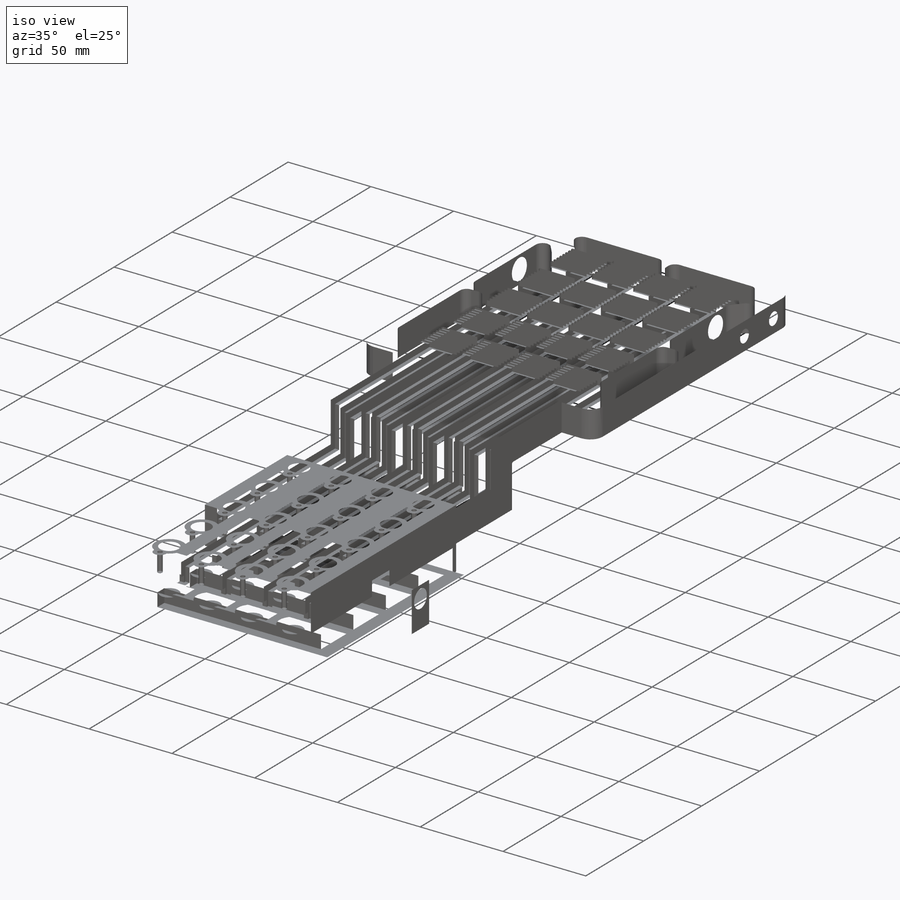
[diagram: iso view]
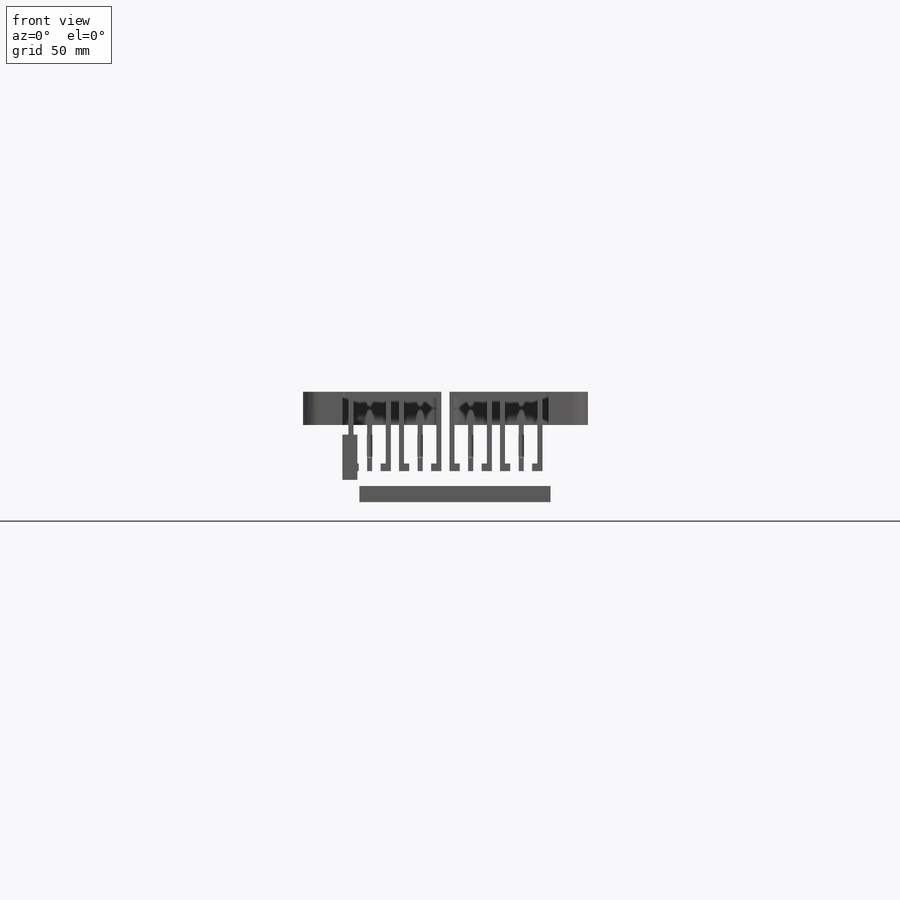
[diagram: front view]
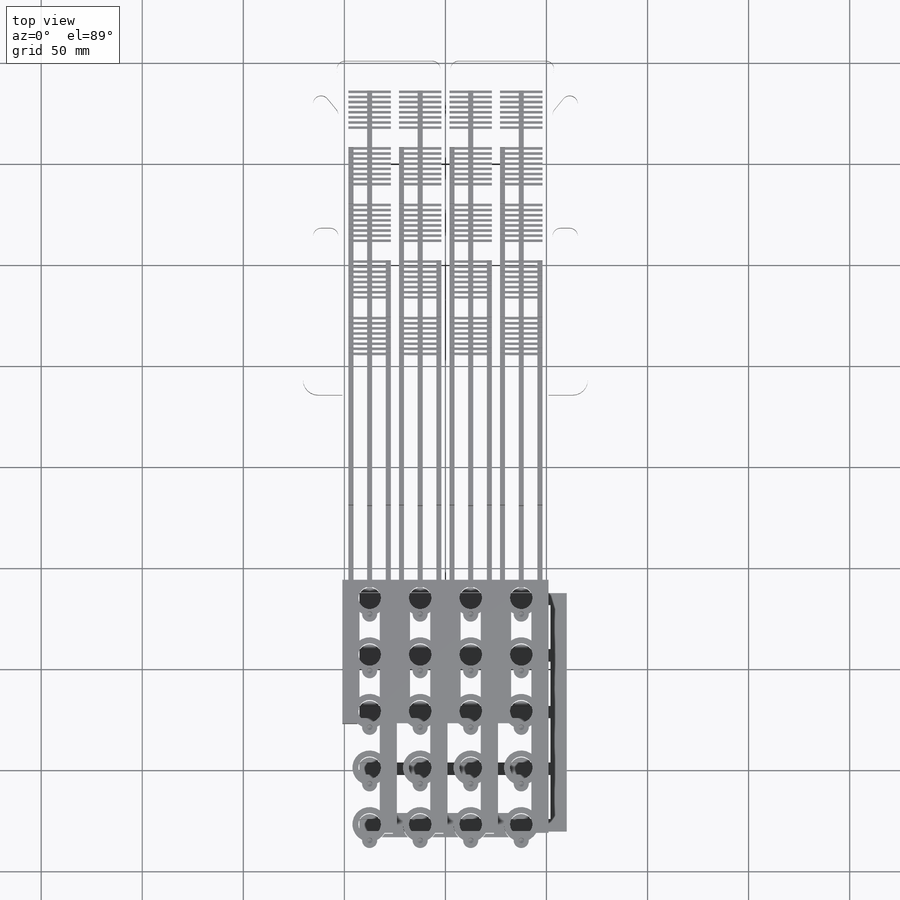
[diagram: top view]
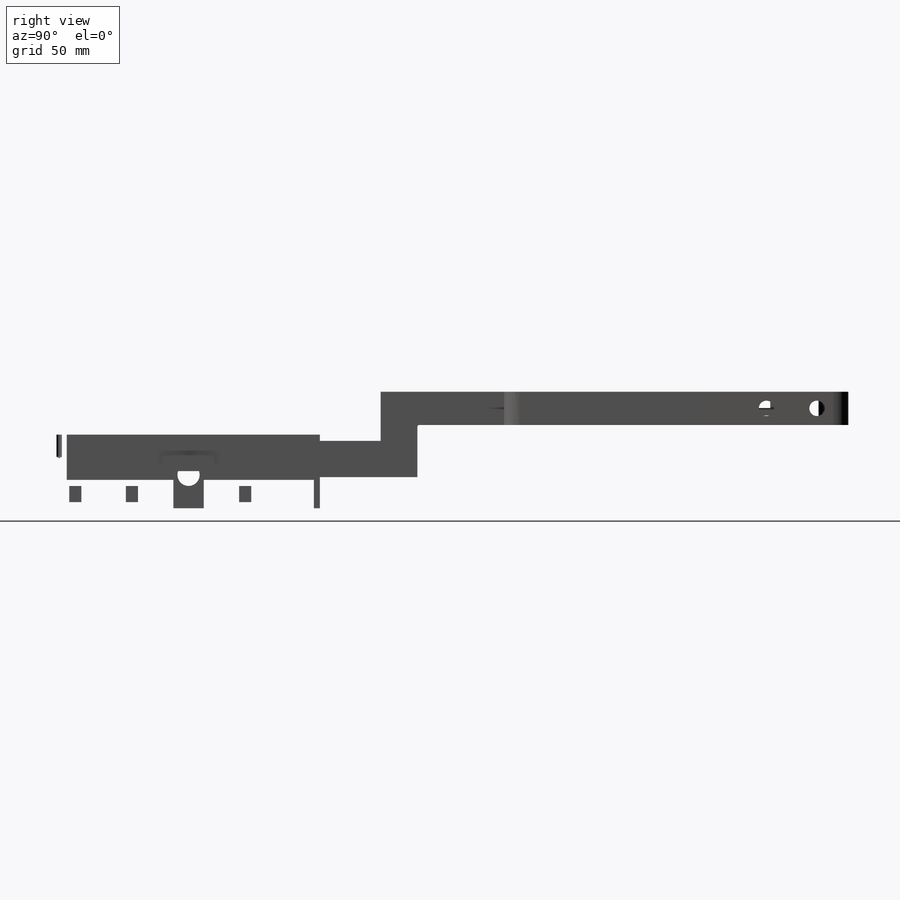
[diagram: right view]
SOLIDWORKS PART (.sldprt)
format: sldprt  version: not decoded by parser v0  size: 18,201,600 bytes
history: native  units: mm
features: sketch x76, cut_extrude x62, pattern_linear x13, thread x5, fillet x5, extrude x4, hole x3, mirror x2, material x1, plane x1 (+11 scaffold rows collapsed)
feature tree (183):
  scaffold x11  (default folders/planes/origin — collapsed)
  material  "Material <not specified>"
  sketch  "Sketch1"  dims[D1=150.0mm D2=425.0mm]
  extrude  "Extrude1"  Depth=65mm
  sketch  "Sketch2"
  sketch  "Sketch3"  dims[c1.D1=1.2mm c1.D2=1.0mm c1.D3=1.0mm c2.D2=21.0mm]
  cut_extrude  "slot 1"  Depth=7mm
  pattern_linear  "LPattern1"  Count1=8 Count2=1 Spacing1=2.525556mm Spacing2=10mm
  pattern_linear  "LPattern2"  Count1=5 Count2=1 Spacing1=28mm Spacing2=10mm
  sketch  "Sketch6"
  cut_extrude  "exclude"  Depth=25.2mm
  sketch  "Sketch7"  dims[D1=10.1mm]
  cut_extrude  "Extrude6"  Depth=25.4mm
  sketch  "tap position"  dims[D1=8.0mm]
  hole  "#6-32 Tapped Hole1"  Diameter=2.7051mm Depth=10.97mm
  sketch  "3DSketch1"
  sketch  "Sketch36"  dims[hole-wizard template sketch: 47 standard entries collapsed; hole parameters kept: c15.Tap Drill Depth=10.97mm c15.D3=~14.816244mm c15.Drill Angle=118.0deg]
  thread  "Hole Thread1"  Diameter=7.01mm  [1 undecoded]
  plane  "top valve passage"  Offset=14.3002mm
  sketch  "Sketch8"  dims[D1=10.16mm]
  cut_extrude  "Extrude7"  Depth=18.0467mm
  pattern_linear  "LPattern3"  Count1=5 Count2=1 Spacing1=28mm Spacing2=10mm
  sketch  "Sketch59"  dims[D1=4.5mm]
  extrude  "left hump"  Depth=2mm
  sketch  "Sketch9"  dims[D1=2.5mm D2=8.0mm]
  cut_extrude  "passage top"  [1 undecoded]
  sketch  "Sketch37"  dims[D1=3.7mm]
  cut_extrude  "mid passage 1st lift"  Depth=5mm
  sketch  "Sketch38"  dims[D1=3.7mm]
  cut_extrude  "mid passage cross"  [1 undecoded]
  sketch  "Sketch39"
  cut_extrude  "mid passage last lift"  [1 undecoded]
  sketch  "Sketch11"  dims[D1=2.5mm]
  cut_extrude  "2 drop"  Depth=11.4mm
  sketch  "Sketch41"  dims[D1=3.7mm]
  cut_extrude  "2 cross "  Depth=12.76666mm
  sketch  "Sketch42"  dims[D1=3.7mm]
  cut_extrude  "2 drop 2"  [1 undecoded]
  sketch  "Sketch12"
  cut_extrude  "2 run"  [1 undecoded]
  sketch  "Sketch43"
  cut_extrude  "3 drop"  Depth=4mm
  sketch  "Sketch44"
  cut_extrude  "3 cross"  Depth=4.5mm
  sketch  "Sketch45"
  cut_extrude  "3 drop 2"  Depth=4.5mm
  sketch  "Sketch14"
  cut_extrude  "3 spur"  [1 undecoded]
  sketch  "Sketch15"
  cut_extrude  "3 lifter"  [1 undecoded]
  sketch  "Sketch46"
  cut_extrude  "3 cross 2"  [1 undecoded]
  sketch  "Sketch47"
  cut_extrude  "4 drop"  [1 undecoded]
  sketch  "Sketch48"
  cut_extrude  "5 drop"  [1 undecoded]
  sketch  "Sketch49"
  cut_extrude  "4 cross"  [1 undecoded]
  sketch  "Sketch50"
  cut_extrude  "4 drop 2"  [1 undecoded]
  sketch  "Sketch51"
  cut_extrude  "4 cross 2"  [1 undecoded]
  sketch  "Sketch53"
  cut_extrude  "5 cross 2"  [1 undecoded]
  sketch  "Sketch54"
  cut_extrude  "5 drop 2"  [1 undecoded]
  sketch  "Sketch55"
  cut_extrude  "5 spur"  [1 undecoded]
  sketch  "Sketch57"
  cut_extrude  "5 drop or rise 3"  [1 undecoded]
  sketch  "Sketch58"
  cut_extrude  "5 cross 3"  [1 undecoded]
  pattern_linear  "LPattern4"  Count1=4 Count2=1 Spacing1=25mm Spacing2=50mm
  sketch  "Sketch24"  dims[D1=5.1mm D2=6.0mm D3=15.0mm]
  cut_extrude  "under slot key"  Depth=8mm
  pattern_linear  "LPattern5"  Count1=5 Count2=1 Spacing1=28mm Spacing2=50mm
  sketch  "Sketch25"  dims[D1=7.0mm]
  cut_extrude  "Extrude23"  [1 undecoded]
  sketch  "center side hole"
  sketch  "Sketch26"  dims[D1=11.0mm]
  cut_extrude  "Extrude24"  Depth=10mm
  sketch  "Sketch28"  dims[D1=8.5mm]
  cut_extrude  "Extrude25"  [1 undecoded]
  sketch  "Sketch29"  dims[D1=9.0mm D2=0.5mm]
  cut_extrude  "Extrude26"  [1 undecoded]
  sketch  "Sketch30"  dims[D1=40.6mm D2=30.0mm]
  cut_extrude  "under cut"  [1 undecoded]
  sketch  "Sketch31"  dims[D1=2.0mm]
  cut_extrude  "pre machine pin holes"  [1 undecoded]
  sketch  "Sketch32"
  cut_extrude  "mill top"  Depth=4mm
  sketch  "Sketch33"
  cut_extrude  "mill bottom"  Depth=4mm
  sketch  "Sketch34"  dims[D1=3.175mm]
  cut_extrude  "ream pin holes"  [1 undecoded]
  sketch  "Sketch60"  dims[c1.D1=10.0mm c1.D2=17.5mm c1.D3=56.0mm c2.D1=10.0mm c2.D3=56.0mm]
  cut_extrude  "Extrude27"  [1 undecoded]
  sketch  "Sketch61"  dims[c1.D2=3.175mm c1.D1=3.0mm c2.D2=15.0mm c2.D3=3.0mm c2.D4=11.0mm c2.D5=80.5mm c2.D6=137.0mm c2.D7=21.0mm c2.D8=25.0mm]
  cut_extrude  "Extrude28"  [1 undecoded]
  sketch  "Sketch62"  dims[D1=99.0mm D2=19.0mm D3=13.0mm]
  cut_extrude  "Extrude29"  Depth=17.5mm
  fillet  "Fillet1"  Radius=6.35mm
  pattern_linear  "LPattern6"  Count1=4 Count2=1 Spacing1=28mm Spacing2=10mm
  fillet  "Fillet2"  Radius=6.35mm
  sketch  "Sketch63"
  cut_extrude  "Extrude30"  [1 undecoded]
  sketch  "Sketch64"  dims[D1=48.0mm D2=25.0mm]
  hole  "1/4-20 Tapped Hole1"  Diameter=5.1054mm Depth=16.51mm
  sketch  "3DSketch2"
  sketch  "Sketch65"  dims[hole-wizard template sketch: 40 standard entries collapsed; hole parameters kept: c13.Tap Drill Depth=16.51mm c13.Near C'Sink Dia.=7.62mm c13.D4=~33.297463mm c13.Near C'Sink Angle=90.0deg c14.D5=~14.816244mm c14.Drill Angle=118.0deg]
  thread  "Hole Thread2"  Diameter=12.7mm  [1 undecoded]
  thread  "Hole Thread3"  Diameter=12.7mm  [1 undecoded]
  mirror  "Mirror1"
  sketch  "Sketch66"  dims[c1.D1=10.0mm c1.D2=3.0mm c1.D3=3.0mm c1.D4=4.0mm c1.D5=3.0mm c1.D6=3.0mm c2.D5=3.0mm c2.D6=15.0mm]
  cut_extrude  "Extrude31"  [1 undecoded]
  sketch  "Sketch67"  dims[c1.D1=3.0mm c1.D2=3.0mm c1.D3=3.0mm c1.D4=10.1mm c2.D4=90.0deg c3.D4=6.0mm]
  cut_extrude  "Extrude32"  [1 undecoded]
  sketch  "Sketch68"  dims[D1=3.0mm D2=6.0mm D3=6.35mm]
  cut_extrude  "Extrude33"  [1 undecoded]
  sketch  "Sketch69"  dims[D1=3.0mm D2=3.0mm D3=3.0mm]
  cut_extrude  "Extrude34"  [1 undecoded]
  sketch  "Sketch70"  dims[D2=3.0mm D1=3.5mm]
  cut_extrude  "Extrude35"  Depth=14mm
  pattern_linear  "LPattern7"  Count1=4 Count2=4 Spacing1=25mm Spacing2=28mm
  sketch  "Sketch71"  dims[D3=3.0mm D4=3.0mm D5=3.0mm D1=3.5mm D2=3.5mm]
  cut_extrude  "Extrude36"  Depth=10mm
  pattern_linear  "LPattern8"  Count1=4 Count2=2 Spacing1=25mm Spacing2=28mm
  sketch  "Sketch72"  dims[D1=7.5mm D2=3.0mm D3=2.0mm D4=25.0mm]
  cut_extrude  "Extrude40"  [1 undecoded]
  pattern_linear  "LPattern9"  Count1=4 Count2=1 Spacing1=25mm Spacing2=28mm
  sketch  "Sketch73"  dims[D1=3.0mm D2=16.5mm]
  cut_extrude  "Extrude41"  [1 undecoded]
  pattern_linear  "LPattern10"  Count1=4 Count2=1 Spacing1=25mm Spacing2=28mm
  sketch  "Sketch74"  dims[D1=3.0mm D2=3.0mm]
  cut_extrude  "Extrude42"  [1 undecoded]
  pattern_linear  "LPattern11"  Count1=4 Count2=2 Spacing1=25mm Spacing2=28mm
  sketch  "Sketch75"  dims[D1=0.25mm]
  cut_extrude  "Extrude43"  [1 undecoded]
  sketch  "Sketch76"  dims[D1=3.0mm]
  cut_extrude  "Extrude44"  [1 undecoded]
  sketch  "Sketch77"
  cut_extrude  "Extrude45"  [1 undecoded]
  sketch  "Sketch78"  dims[D1=2.0mm D2=15.0mm]
  cut_extrude  "Extrude46"  [1 undecoded]
  sketch  "Sketch79"
  cut_extrude  "Extrude47"  [1 undecoded]
  sketch  "Sketch80"  dims[c1.D9=10.0mm c1.D1=5.0mm c1.D2=5.0mm c1.D3=5.0mm c1.D4=~19.92375mm c2.D4=~177.319607deg c3.D4=5.0mm c3.D5=5.0mm c3.D6=6.0mm c3.D7=5.0mm c3.D8=5.0mm]
  cut_extrude  "Extrude48"  [1 undecoded]
  fillet  "Fillet3"  Radius=7.5mm
  sketch  "Sketch81"  dims[D1=5.0mm D2=5.0mm D3=5.0mm D4=12.0mm D5=12.0mm D6=5.0mm D7=5.0mm D8=5.0mm]
  cut_extrude  "Extrude49"  [1 undecoded]
  fillet  "Fillet4"  Radius=4mm
  sketch  "Sketch82"
  extrude  "Extrude50"  Depth=1mm
  pattern_linear  "LPattern12"  Count1=4 Count2=1 Spacing1=28mm Spacing2=28mm
  sketch  "Sketch83"  dims[D3=13.0mm D1=40.5mm D2=25.0mm]
  extrude  "Extrude51"  [1 undecoded]
  hole  "1/4-20 Tapped Hole2"  Diameter=5.1054mm Depth=16.51mm
  sketch  "3DSketch3"
  sketch  "Sketch84"  dims[hole-wizard template sketch: 40 standard entries collapsed; hole parameters kept: c13.Tap Drill Depth=16.51mm c13.Near C'Sink Dia.=7.62mm c13.D4=~33.297463mm c13.Near C'Sink Angle=90.0deg c14.D5=~14.816244mm c14.Drill Angle=118.0deg]
  thread  "Hole Thread4"  Diameter=12.7mm  [1 undecoded]
  thread  "Hole Thread5"  Diameter=12.7mm  [1 undecoded]
  mirror  "Mirror2"
  sketch  "Sketch85"  dims[D1=0.0mm]
  cut_extrude  "Extrude52"  Depth=4mm
  sketch  "Sketch86"  dims[D1=0.0mm]
  cut_extrude  "Extrude53"  Depth=4mm
  fillet  "Fillet5"  Radius=1mm
  sketch  "Sketch87"  dims[D1=11.1mm]
  cut_extrude  "Extrude54"  [1 undecoded]
  pattern_linear  "LPattern13"  Count1=4 Count2=5 Spacing1=25mm Spacing2=28mm
  sketch  "Sketch88"  dims[D1=3.175mm]
  cut_extrude  "Extrude55"  [1 undecoded]
decode coverage: 94 of 170 modeling features carry decoded parameters
note: ~ marks probable driven/reference dimensions
note: 49 parameter values undecoded
summary: no parameter record found for 44 features
note: suppression state not decoded; provenance and decode notes live in map.json
